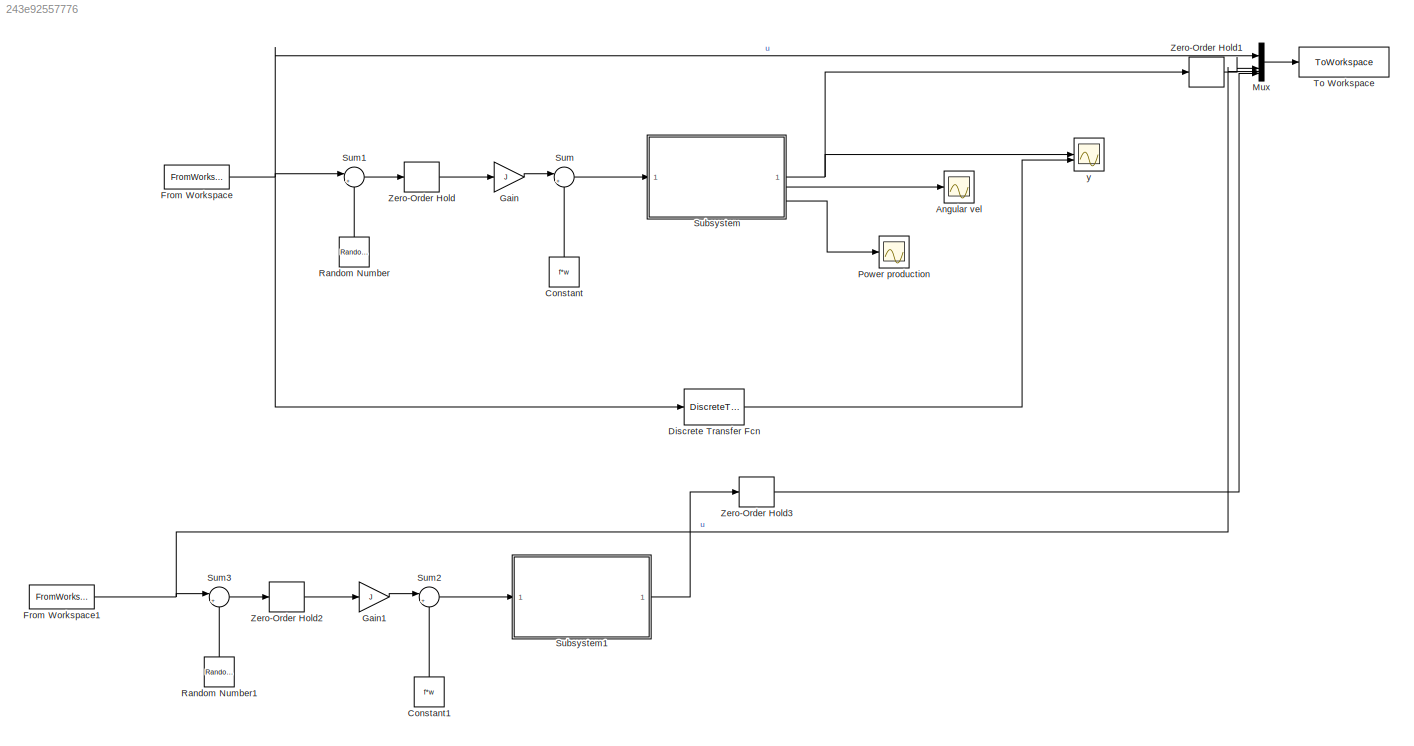
MODEL slx_243e92557776
KIND model
CONFIG AbsTol = auto
CONFIG EnableMultiTasking = off
CONFIG FixedStep = auto
CONFIG MaxStep = 1e-3
CONFIG MinStep = auto
CONFIG RelTol = 1e-3
CONFIG SampleTimeConstraint = Unconstrained
CONFIG SolverName = ode15s
CONFIG StartTime = 0.0
CONFIG StopTime = 12
BLOCK [Scope] Angular vel
  Floating = off
  NumInputPorts = 1
  ScopeSpecificationString = Simulink.scopes.TimeScopeBlockCfg('CurrentConfiguration', extmgr.ConfigurationSet(extmgr.Configuration('Core','General UI',true),extmgr.Configuration('Core','Source UI',true),extmgr.Configuration('Sources','WiredSimulink',true,'DataLoggingVariableName','ScopeData1'),extmgr.Configuration('Visuals','Time Domain',true,'SerializedDisplays',{struct('MinYLimReal','224.79327','MaxYLimReal','605.82004','Y...<+1433ch>
BLOCK [Constant] Constant
  NameLocation = right
  Value = f*w
BLOCK [Constant] Constant1
  NameLocation = right
  Value = f*w
BLOCK [DiscreteTransferFcn] Discrete Transfer Fcn
  Denominator = den{1}
  InputPortMap = u0
  Numerator = num{1}
  SampleTime = h
BLOCK [FromWorkspace] From Workspace
  SampleTime = h
  VariableName = input1
BLOCK [FromWorkspace] From Workspace1
  SampleTime = h
  VariableName = input1v
BLOCK [Gain] Gain
  Gain = J
BLOCK [Gain] Gain1
  Gain = J
BLOCK [Mux] Mux
  DisplayOption = bar
BLOCK [Scope] Power production
  Floating = off
  NumInputPorts = 1
  ScopeSpecificationString = Simulink.scopes.TimeScopeBlockCfg('CurrentConfiguration', extmgr.ConfigurationSet(extmgr.Configuration('Core','General UI',true),extmgr.Configuration('Core','Source UI',true),extmgr.Configuration('Sources','WiredSimulink',true,'DataLoggingVariableName','ScopeData2'),extmgr.Configuration('Visuals','Time Domain',true,'SerializedDisplays',{struct('MinYLimReal','-117411511.98523','MaxYLimReal','130457...<+1475ch>
BLOCK [RandomNumber] Random Number
  NameLocation = right
  SampleTime = h
  Variance = 4
BLOCK [RandomNumber] Random Number1
  NameLocation = right
  SampleTime = h
  Seed = 9
  Variance = 4
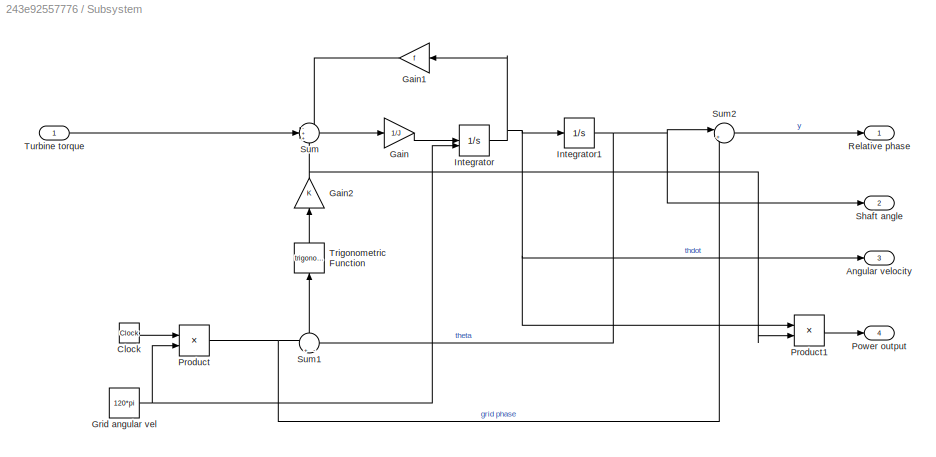
BLOCK [SubSystem] Subsystem
BLOCK [Outport] Subsystem/Angular velocity
  Port = 3
BLOCK [Clock] Subsystem/Clock
BLOCK [Gain] Subsystem/Gain
  Gain = 1/J
BLOCK [Gain] Subsystem/Gain1
  Gain = f
  NameLocation = top
BLOCK [Gain] Subsystem/Gain2
  Gain = K
  NameLocation = right
BLOCK [Constant] Subsystem/Grid angular vel
  Value = 120*pi
BLOCK [Integrator] Subsystem/Integrator
  InitialConditionSource = external
BLOCK [Integrator] Subsystem/Integrator1
BLOCK [Outport] Subsystem/Power output
  Port = 4
BLOCK [Product] Subsystem/Product
BLOCK [Product] Subsystem/Product1
BLOCK [Outport] Subsystem/Relative phase
BLOCK [Outport] Subsystem/Shaft angle
  Port = 2
BLOCK [Sum] Subsystem/Sum
  Inputs = -++
BLOCK [Sum] Subsystem/Sum1
  Inputs = +|-
  NameLocation = right
BLOCK [Sum] Subsystem/Sum2
  Inputs = |+-
BLOCK [Trigonometry] Subsystem/Trigonometric Function
  NameLocation = right
BLOCK [Inport] Subsystem/Turbine torque
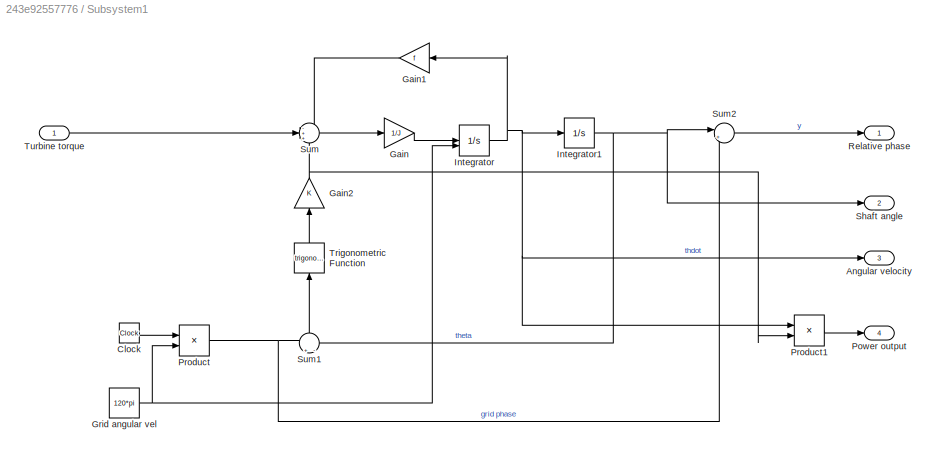
BLOCK [SubSystem] Subsystem1
BLOCK [Outport] Subsystem1/Angular velocity
  Port = 3
BLOCK [Clock] Subsystem1/Clock
BLOCK [Gain] Subsystem1/Gain
  Gain = 1/J
BLOCK [Gain] Subsystem1/Gain1
  Gain = f
  NameLocation = top
BLOCK [Gain] Subsystem1/Gain2
  Gain = K
  NameLocation = right
BLOCK [Constant] Subsystem1/Grid angular vel
  Value = 120*pi
BLOCK [Integrator] Subsystem1/Integrator
  InitialConditionSource = external
BLOCK [Integrator] Subsystem1/Integrator1
BLOCK [Outport] Subsystem1/Power output
  Port = 4
BLOCK [Product] Subsystem1/Product
BLOCK [Product] Subsystem1/Product1
BLOCK [Outport] Subsystem1/Relative phase
BLOCK [Outport] Subsystem1/Shaft angle
  Port = 2
BLOCK [Sum] Subsystem1/Sum
  Inputs = -++
BLOCK [Sum] Subsystem1/Sum1
  Inputs = +|-
  NameLocation = right
BLOCK [Sum] Subsystem1/Sum2
  Inputs = |+-
BLOCK [Trigonometry] Subsystem1/Trigonometric Function
  NameLocation = right
BLOCK [Inport] Subsystem1/Turbine torque
BLOCK [Sum] Sum
  Inputs = |++
BLOCK [Sum] Sum1
  Inputs = |++
BLOCK [Sum] Sum2
  Inputs = |++
BLOCK [Sum] Sum3
  Inputs = |++
BLOCK [ToWorkspace] To Workspace
  FixptAsFi = on
  MaxDataPoints = inf
  SampleTime = -1
  SaveFormat = Timeseries
  VariableName = simout
BLOCK [ZeroOrderHold] Zero-Order Hold
  SampleTime = h
BLOCK [ZeroOrderHold] Zero-Order Hold1
  SampleTime = h
BLOCK [ZeroOrderHold] Zero-Order Hold2
  SampleTime = h
BLOCK [ZeroOrderHold] Zero-Order Hold3
  SampleTime = h
BLOCK [Scope] y
  Floating = off
  NumInputPorts = 2
  ScopeSpecificationString = Simulink.scopes.TimeScopeBlockCfg('CurrentConfiguration', extmgr.ConfigurationSet(extmgr.Configuration('Core','General UI',true),extmgr.Configuration('Core','Source UI',true),extmgr.Configuration('Sources','WiredSimulink',true),extmgr.Configuration('Visuals','Time Domain',true,'SerializedDisplays',{struct('MinYLimReal','-1.75886','MaxYLimReal','2.12803','YLabelReal','','MinYLimMag','0.00000','MaxY...<+1468ch>
LINE Constant1:1 -> Sum2:2
LINE Constant:1 -> Sum:2
LINE Discrete Transfer Fcn:1 -> y:2
NET From Workspace1:1 -> Mux:3, Sum3:1
NET From Workspace:1 -> Discrete Transfer Fcn:1, Mux:1, Sum1:1
LINE Gain1:1 -> Sum2:1
LINE Gain:1 -> Sum:1
LINE Mux:1 -> To Workspace:1
LINE Random Number1:1 -> Sum3:2
LINE Random Number:1 -> Sum1:2
LINE Subsystem/Clock:1 -> Subsystem/Product:1
LINE Subsystem/Gain1:1 -> Subsystem/Sum:1
NET Subsystem/Gain2:1 -> Subsystem/Product1:2, Subsystem/Sum:3
LINE Subsystem/Gain:1 -> Subsystem/Integrator:1
NET Subsystem/Grid angular vel:1 -> Subsystem/Integrator:2, Subsystem/Product:2
NET Subsystem/Integrator1:1 -> Subsystem/Shaft angle:1, Subsystem/Sum1:2, Subsystem/Sum2:1
NET Subsystem/Integrator:1 -> Subsystem/Angular velocity:1, Subsystem/Gain1:1, Subsystem/Integrator1:1, Subsystem/Product1:1
LINE Subsystem/Product1:1 -> Subsystem/Power output:1
NET Subsystem/Product:1 -> Subsystem/Sum1:1, Subsystem/Sum2:2
LINE Subsystem/Sum1:1 -> Subsystem/Trigonometric Function:1
LINE Subsystem/Sum2:1 -> Subsystem/Relative phase:1
LINE Subsystem/Sum:1 -> Subsystem/Gain:1
LINE Subsystem/Trigonometric Function:1 -> Subsystem/Gain2:1
LINE Subsystem/Turbine torque:1 -> Subsystem/Sum:2
LINE Subsystem1/Clock:1 -> Subsystem1/Product:1
LINE Subsystem1/Gain1:1 -> Subsystem1/Sum:1
NET Subsystem1/Gain2:1 -> Subsystem1/Product1:2, Subsystem1/Sum:3
LINE Subsystem1/Gain:1 -> Subsystem1/Integrator:1
NET Subsystem1/Grid angular vel:1 -> Subsystem1/Integrator:2, Subsystem1/Product:2
NET Subsystem1/Integrator1:1 -> Subsystem1/Shaft angle:1, Subsystem1/Sum1:2, Subsystem1/Sum2:1
NET Subsystem1/Integrator:1 -> Subsystem1/Angular velocity:1, Subsystem1/Gain1:1, Subsystem1/Integrator1:1, Subsystem1/Product1:1
LINE Subsystem1/Product1:1 -> Subsystem1/Power output:1
NET Subsystem1/Product:1 -> Subsystem1/Sum1:1, Subsystem1/Sum2:2
LINE Subsystem1/Sum1:1 -> Subsystem1/Trigonometric Function:1
LINE Subsystem1/Sum2:1 -> Subsystem1/Relative phase:1
LINE Subsystem1/Sum:1 -> Subsystem1/Gain:1
LINE Subsystem1/Trigonometric Function:1 -> Subsystem1/Gain2:1
LINE Subsystem1/Turbine torque:1 -> Subsystem1/Sum:2
LINE Subsystem1:1 -> Zero-Order Hold3:1
NET Subsystem:1 -> Zero-Order Hold1:1, y:1
LINE Subsystem:3 -> Angular vel:1
LINE Subsystem:4 -> Power production:1
LINE Sum1:1 -> Zero-Order Hold:1
LINE Sum2:1 -> Subsystem1:1
LINE Sum3:1 -> Zero-Order Hold2:1
LINE Sum:1 -> Subsystem:1
LINE Zero-Order Hold1:1 -> Mux:2
LINE Zero-Order Hold2:1 -> Gain1:1
LINE Zero-Order Hold3:1 -> Mux:4
LINE Zero-Order Hold:1 -> Gain:1
note: NET lines group one-source signal fan-out (src -> all destinations, sorted); 1:1 wires keep LINE
